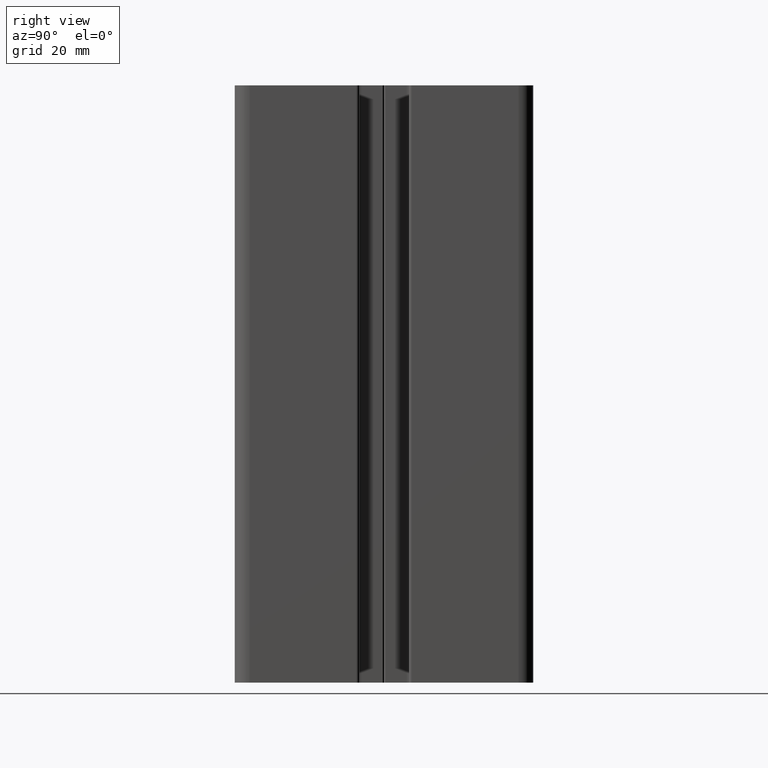
[diagram: clean part render]
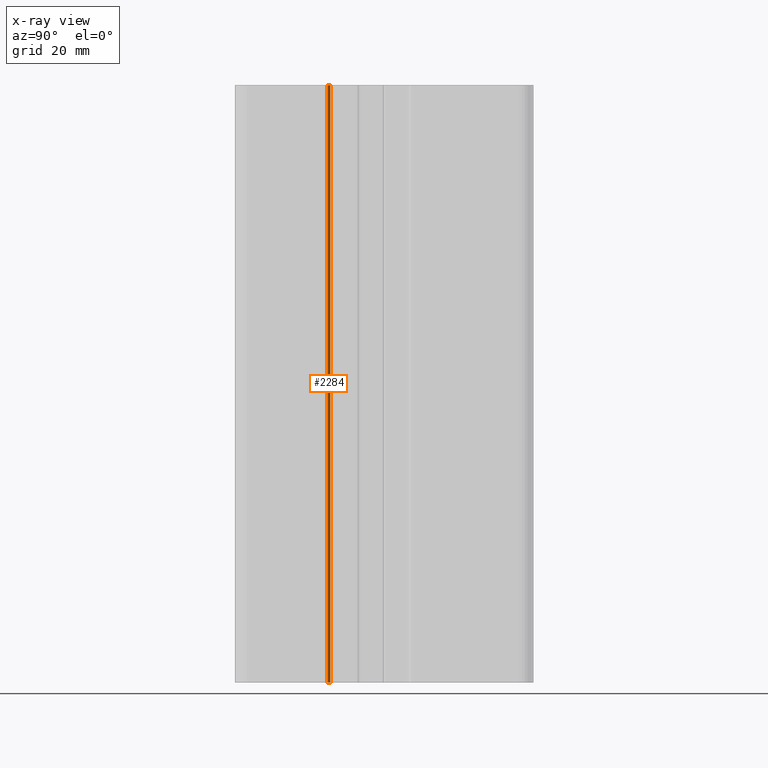
[diagram: x-ray — body ghosted, one internal face saturated and labeled with its STEP entity id]
A machine part, right view, then the same camera in x-ray: the body is ghosted and one INTERNAL B-rep face — a face not visible from any outside direction — is saturated and labeled: STEP entity #2284.
In plain terms, the highlighted cylindrical surface (edge-blend (fillet) strip) has radius 0.5 mm, axis along (0, 0, 1).
Its self-contained STEP definition (entity closure, byte-faithful):
#104=FACE_OUTER_BOUND('',#223,.T.);
#223=EDGE_LOOP('',(#1567,#1568,#1569,#1570));
#364=LINE('',#3388,#608);
#366=LINE('',#3394,#610);
#608=VECTOR('',#2691,100.);
#610=VECTOR('',#2697,100.);
#841=CIRCLE('',#2418,0.500000000000007);
#842=CIRCLE('',#2419,0.500000000000007);
#959=VERTEX_POINT('',#3385);
#960=VERTEX_POINT('',#3387);
#961=VERTEX_POINT('',#3391);
#962=VERTEX_POINT('',#3393);
#1204=EDGE_CURVE('',#959,#960,#364,.T.);
#1206=EDGE_CURVE('',#961,#959,#841,.T.);
#1207=EDGE_CURVE('',#961,#962,#366,.T.);
#1208=EDGE_CURVE('',#960,#962,#842,.T.);
#1567=ORIENTED_EDGE('',*,*,#1206,.F.);
#1568=ORIENTED_EDGE('',*,*,#1207,.T.);
#1569=ORIENTED_EDGE('',*,*,#1208,.F.);
#1570=ORIENTED_EDGE('',*,*,#1204,.F.);
#2225=CYLINDRICAL_SURFACE('',#2417,0.500000000000007);
#2284=ADVANCED_FACE('',(#104),#2225,.F.);
#2417=AXIS2_PLACEMENT_3D('',#3390,#2693,#2694);
#2418=AXIS2_PLACEMENT_3D('',#3392,#2695,#2696);
#2419=AXIS2_PLACEMENT_3D('',#3395,#2698,#2699);
#2691=DIRECTION('',(0.,0.,1.));
#2693=DIRECTION('center_axis',(0.,0.,1.));
#2694=DIRECTION('ref_axis',(-1.,1.42108547152028E-13,0.));
#2695=DIRECTION('center_axis',(0.,0.,1.));
#2696=DIRECTION('ref_axis',(-1.,1.42108547152028E-13,0.));
#2697=DIRECTION('',(0.,0.,1.));
#2698=DIRECTION('center_axis',(0.,0.,-1.));
#2699=DIRECTION('ref_axis',(-1.,1.42108547152028E-13,0.));
#3385=CARTESIAN_POINT('',(22.4999999999988,-9.00000000000315,0.));
#3387=CARTESIAN_POINT('',(22.4999999999988,-9.00000000000315,100.));
#3388=CARTESIAN_POINT('',(22.4999999999988,-9.00000000000315,0.));
#3390=CARTESIAN_POINT('Origin',(22.4999999999987,-9.50000000000315,0.));
#3391=CARTESIAN_POINT('',(22.9999999999987,-9.50000000000323,0.));
#3392=CARTESIAN_POINT('Origin',(22.4999999999987,-9.50000000000315,0.));
#3393=CARTESIAN_POINT('',(22.9999999999987,-9.50000000000323,100.));
#3394=CARTESIAN_POINT('',(22.9999999999987,-9.50000000000323,0.));
#3395=CARTESIAN_POINT('Origin',(22.4999999999987,-9.50000000000315,100.));